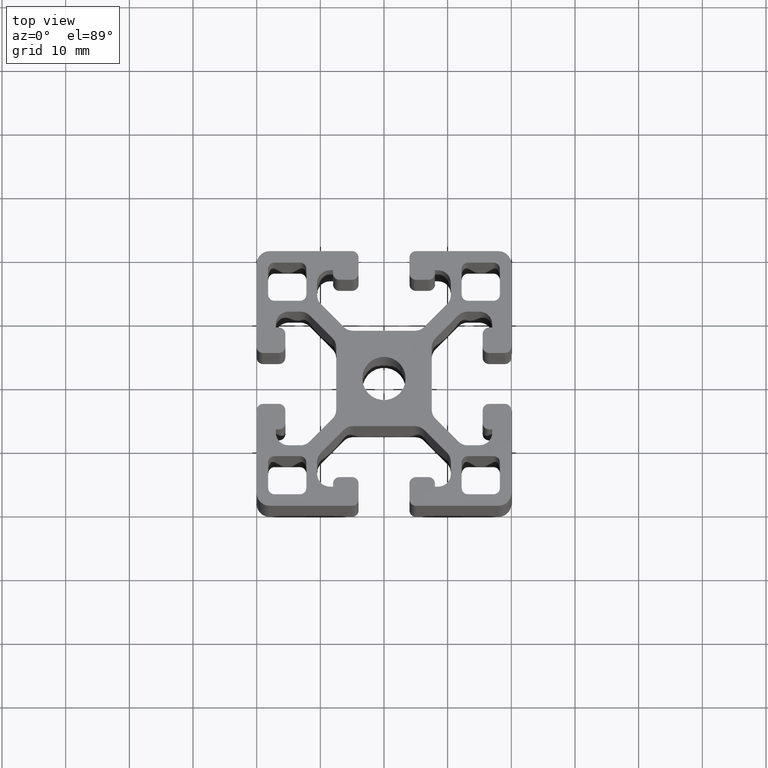
[diagram: clean part render]
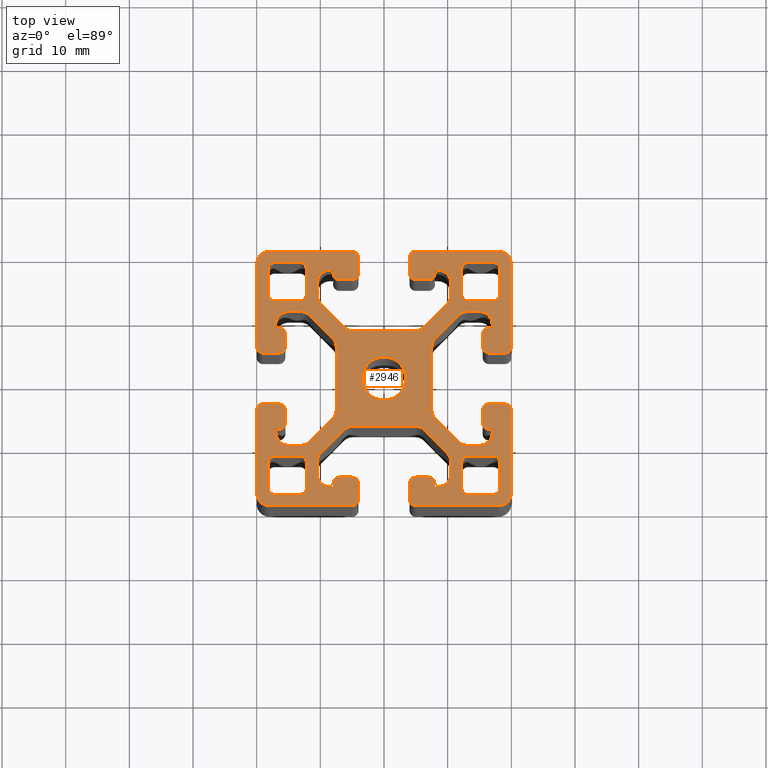
[diagram: same view with one face highlighted and labeled with its STEP entity id]
A machine part, top view. The second image highlights one B-rep face of the part: STEP entity #2946.
In plain terms, the highlighted planar face has unit normal (0, 0, 1).
Its self-contained STEP definition (entity closure, byte-faithful):
#21=FACE_BOUND('',#533,.T.);
#22=FACE_BOUND('',#534,.T.);
#23=FACE_BOUND('',#535,.T.);
#24=FACE_BOUND('',#536,.T.);
#25=FACE_BOUND('',#537,.T.);
#26=CIRCLE('',#2951,1.);
#28=CIRCLE('',#2955,1.);
#30=CIRCLE('',#2959,1.);
#32=CIRCLE('',#2963,1.);
#34=CIRCLE('',#2966,3.3999932);
#36=CIRCLE('',#2970,1.);
#38=CIRCLE('',#2974,1.);
#40=CIRCLE('',#2978,1.);
#42=CIRCLE('',#2982,1.);
#44=CIRCLE('',#2985,1.);
#46=CIRCLE('',#2989,1.);
#48=CIRCLE('',#2993,1.);
#50=CIRCLE('',#2997,1.);
#52=CIRCLE('',#3002,0.99999800405115);
#54=CIRCLE('',#3006,0.999998004051143);
#56=CIRCLE('',#3009,0.99999800405115);
#58=CIRCLE('',#3013,0.99999800405115);
#60=CIRCLE('',#3017,0.999998004051154);
#62=CIRCLE('',#3022,2.);
#64=CIRCLE('',#3026,2.);
#66=CIRCLE('',#3030,2.);
#68=CIRCLE('',#3034,1.99999999999999);
#70=CIRCLE('',#3038,2.00000000000001);
#72=CIRCLE('',#3042,2.00000000000001);
#74=CIRCLE('',#3047,0.99999800405115);
#76=CIRCLE('',#3051,0.99999800405115);
#78=CIRCLE('',#3056,2.);
#80=CIRCLE('',#3060,2.);
#82=CIRCLE('',#3064,2.);
#84=CIRCLE('',#3068,2.);
#86=CIRCLE('',#3072,2.);
#88=CIRCLE('',#3076,2.);
#90=CIRCLE('',#3081,0.99999800405115);
#92=CIRCLE('',#3085,0.99999800405115);
#94=CIRCLE('',#3089,0.99999800405115);
#96=CIRCLE('',#3092,0.99999800405115);
#98=CIRCLE('',#3096,0.99999800405115);
#100=CIRCLE('',#3101,0.999998004051149);
#102=CIRCLE('',#3105,0.999998004051154);
#104=CIRCLE('',#3109,0.99999800405115);
#106=CIRCLE('',#3112,0.99999800405115);
#108=CIRCLE('',#3116,0.99999800405115);
#110=CIRCLE('',#3120,0.99999800405115);
#112=CIRCLE('',#3125,2.);
#114=CIRCLE('',#3129,2.);
#116=CIRCLE('',#3133,2.);
#118=CIRCLE('',#3137,2.);
#120=CIRCLE('',#3141,2.);
#122=CIRCLE('',#3145,2.);
#124=CIRCLE('',#3148,0.99999800405115);
#126=CIRCLE('',#3153,2.);
#128=CIRCLE('',#3157,2.);
#130=CIRCLE('',#3161,2.);
#132=CIRCLE('',#3165,2.);
#134=CIRCLE('',#3169,2.);
#136=CIRCLE('',#3173,2.);
#138=CIRCLE('',#3178,0.999998004051148);
#140=CIRCLE('',#3182,0.99999800405115);
#142=CIRCLE('',#3186,0.999998004051161);
#144=CIRCLE('',#3189,0.99999800405115);
#146=CIRCLE('',#3193,0.99999800405115);
#148=CIRCLE('',#3198,1.);
#150=CIRCLE('',#3202,1.);
#152=CIRCLE('',#3206,1.);
#154=CIRCLE('',#3210,1.);
#160=CIRCLE('',#3222,1.99999999999999);
#161=CIRCLE('',#3225,2.);
#162=CIRCLE('',#3228,2.);
#163=CIRCLE('',#3231,2.);
#379=FACE_OUTER_BOUND('',#532,.T.);
#532=EDGE_LOOP('',(#2577,#2578,#2579,#2580,#2581,#2582,#2583,#2584,#2585,
#2586,#2587,#2588,#2589,#2590,#2591,#2592,#2593,#2594,#2595,#2596,#2597,
#2598,#2599,#2600,#2601,#2602,#2603,#2604,#2605,#2606,#2607,#2608,#2609,
#2610,#2611,#2612,#2613,#2614,#2615,#2616,#2617,#2618,#2619,#2620,#2621,
#2622,#2623,#2624,#2625,#2626,#2627,#2628,#2629,#2630,#2631,#2632,#2633,
#2634,#2635,#2636,#2637,#2638,#2639,#2640,#2641,#2642,#2643,#2644,#2645,
#2646,#2647,#2648,#2649,#2650,#2651,#2652,#2653,#2654,#2655,#2656,#2657,
#2658,#2659,#2660,#2661,#2662,#2663,#2664,#2665,#2666,#2667,#2668,#2669,
#2670,#2671,#2672,#2673,#2674,#2675,#2676,#2677,#2678,#2679,#2680,#2681,
#2682,#2683,#2684,#2685,#2686,#2687,#2688));
#533=EDGE_LOOP('',(#2689,#2690,#2691,#2692,#2693,#2694,#2695,#2696));
#534=EDGE_LOOP('',(#2697));
#535=EDGE_LOOP('',(#2698,#2699,#2700,#2701,#2702,#2703,#2704,#2705));
#536=EDGE_LOOP('',(#2706,#2707,#2708,#2709,#2710,#2711,#2712,#2713));
#537=EDGE_LOOP('',(#2714,#2715,#2716,#2717,#2718,#2719,#2720,#2721));
#538=LINE('',#4106,#834);
#543=LINE('',#4120,#839);
#547=LINE('',#4132,#843);
#551=LINE('',#4144,#847);
#554=LINE('',#4159,#850);
#559=LINE('',#4173,#855);
#563=LINE('',#4185,#859);
#567=LINE('',#4197,#863);
#572=LINE('',#4215,#868);
#576=LINE('',#4227,#872);
#580=LINE('',#4239,#876);
#584=LINE('',#4250,#880);
#586=LINE('',#4255,#882);
#591=LINE('',#4269,#887);
#597=LINE('',#4290,#893);
#601=LINE('',#4302,#897);
#605=LINE('',#4314,#901);
#608=LINE('',#4320,#904);
#612=LINE('',#4332,#908);
#616=LINE('',#4344,#912);
#620=LINE('',#4356,#916);
#624=LINE('',#4368,#920);
#628=LINE('',#4380,#924);
#632=LINE('',#4392,#928);
#635=LINE('',#4398,#931);
#638=LINE('',#4408,#934);
#643=LINE('',#4422,#939);
#646=LINE('',#4428,#942);
#650=LINE('',#4440,#946);
#654=LINE('',#4452,#950);
#658=LINE('',#4464,#954);
#662=LINE('',#4476,#958);
#666=LINE('',#4488,#962);
#670=LINE('',#4500,#966);
#673=LINE('',#4506,#969);
#677=LINE('',#4518,#973);
#681=LINE('',#4530,#977);
#687=LINE('',#4551,#983);
#690=LINE('',#4561,#986);
#694=LINE('',#4569,#990);
#698=LINE('',#4581,#994);
#702=LINE('',#4593,#998);
#708=LINE('',#4614,#1004);
#712=LINE('',#4626,#1008);
#716=LINE('',#4638,#1012);
#719=LINE('',#4644,#1015);
#723=LINE('',#4656,#1019);
#727=LINE('',#4668,#1023);
#731=LINE('',#4680,#1027);
#735=LINE('',#4692,#1031);
#739=LINE('',#4704,#1035);
#744=LINE('',#4722,#1040);
#747=LINE('',#4728,#1043);
#751=LINE('',#4740,#1047);
#755=LINE('',#4752,#1051);
#759=LINE('',#4764,#1055);
#763=LINE('',#4776,#1059);
#767=LINE('',#4788,#1063);
#771=LINE('',#4800,#1067);
#774=LINE('',#4806,#1070);
#778=LINE('',#4818,#1074);
#782=LINE('',#4830,#1078);
#788=LINE('',#4851,#1084);
#792=LINE('',#4862,#1088);
#794=LINE('',#4867,#1090);
#799=LINE('',#4881,#1095);
#803=LINE('',#4893,#1099);
#807=LINE('',#4905,#1103);
#810=LINE('',#4914,#1106);
#815=LINE('',#4923,#1111);
#816=LINE('',#4926,#1112);
#821=LINE('',#4935,#1117);
#828=LINE('',#4956,#1124);
#829=LINE('',#4961,#1125);
#832=LINE('',#4968,#1128);
#833=LINE('',#4972,#1129);
#834=VECTOR('',#3238,4.);
#839=VECTOR('',#3251,3.99999999999999);
#843=VECTOR('',#3263,3.99999999999999);
#847=VECTOR('',#3275,3.99999999999999);
#850=VECTOR('',#3292,3.99999999999999);
#855=VECTOR('',#3305,4.00000000000001);
#859=VECTOR('',#3317,4.);
#863=VECTOR('',#3329,4.);
#868=VECTOR('',#3348,4.);
#872=VECTOR('',#3360,4.);
#876=VECTOR('',#3372,4.);
#880=VECTOR('',#3384,4.);
#882=VECTOR('',#3388,2.0000039918977);
#887=VECTOR('',#3401,2.50000399189769);
#893=VECTOR('',#3421,2.50000399189769);
#897=VECTOR('',#3433,2.0000039918977);
#901=VECTOR('',#3445,0.500001995948844);
#904=VECTOR('',#3450,0.499999999999996);
#908=VECTOR('',#3462,1.90380592228745);
#912=VECTOR('',#3474,5.08578643762691);
#916=VECTOR('',#3486,9.80761184457489);
#920=VECTOR('',#3498,5.08578643762691);
#924=VECTOR('',#3510,1.90380592228743);
#928=VECTOR('',#3522,0.500000000000003);
#931=VECTOR('',#3527,0.500001995948844);
#934=VECTOR('',#3538,2.0000039918977);
#939=VECTOR('',#3551,0.500001995948853);
#942=VECTOR('',#3556,0.499999999999994);
#946=VECTOR('',#3568,1.90380592228744);
#950=VECTOR('',#3580,5.0857864376269);
#954=VECTOR('',#3592,9.80761184457489);
#958=VECTOR('',#3604,5.08578643762691);
#962=VECTOR('',#3616,1.90380592228743);
#966=VECTOR('',#3628,0.499999999999998);
#969=VECTOR('',#3633,0.500001995948853);
#973=VECTOR('',#3645,2.0000039918977);
#977=VECTOR('',#3657,2.50000399189769);
#983=VECTOR('',#3677,2.50000399189769);
#986=VECTOR('',#3688,0.499999999999998);
#990=VECTOR('',#3694,0.500001995948849);
#994=VECTOR('',#3706,2.0000039918977);
#998=VECTOR('',#3718,2.50000399189769);
#1004=VECTOR('',#3738,2.50000399189769);
#1008=VECTOR('',#3750,2.0000039918977);
#1012=VECTOR('',#3762,0.500001995948849);
#1015=VECTOR('',#3767,0.499999999999989);
#1019=VECTOR('',#3779,1.90380592228744);
#1023=VECTOR('',#3791,5.08578643762692);
#1027=VECTOR('',#3803,9.80761184457488);
#1031=VECTOR('',#3815,5.08578643762691);
#1035=VECTOR('',#3827,1.90380592228744);
#1040=VECTOR('',#3846,0.500001995948849);
#1043=VECTOR('',#3851,0.499999999999998);
#1047=VECTOR('',#3863,1.90380592228744);
#1051=VECTOR('',#3875,5.08578643762691);
#1055=VECTOR('',#3887,9.80761184457488);
#1059=VECTOR('',#3899,5.0857864376269);
#1063=VECTOR('',#3911,1.90380592228744);
#1067=VECTOR('',#3923,0.499999999999994);
#1070=VECTOR('',#3928,0.500001995948849);
#1074=VECTOR('',#3940,2.0000039918977);
#1078=VECTOR('',#3952,2.5000039918977);
#1084=VECTOR('',#3972,2.5000039918977);
#1088=VECTOR('',#3984,2.0000039918977);
#1090=VECTOR('',#3988,4.);
#1095=VECTOR('',#4001,3.99999999999999);
#1099=VECTOR('',#4013,3.99999999999999);
#1103=VECTOR('',#4025,3.99999999999999);
#1106=VECTOR('',#4036,13.0000019959489);
#1111=VECTOR('',#4043,13.0000019959489);
#1112=VECTOR('',#4046,13.0000019959488);
#1117=VECTOR('',#4053,13.0000019959488);
#1124=VECTOR('',#4076,13.0000019959488);
#1125=VECTOR('',#4083,13.0000019959488);
#1128=VECTOR('',#4092,13.0000019959489);
#1129=VECTOR('',#4099,13.0000019959489);
#1130=VERTEX_POINT('',#4104);
#1131=VERTEX_POINT('',#4105);
#1134=VERTEX_POINT('',#4113);
#1136=VERTEX_POINT('',#4119);
#1138=VERTEX_POINT('',#4125);
#1140=VERTEX_POINT('',#4131);
#1142=VERTEX_POINT('',#4137);
#1144=VERTEX_POINT('',#4143);
#1146=VERTEX_POINT('',#4152);
#1148=VERTEX_POINT('',#4157);
#1149=VERTEX_POINT('',#4158);
#1152=VERTEX_POINT('',#4166);
#1154=VERTEX_POINT('',#4172);
#1156=VERTEX_POINT('',#4178);
#1158=VERTEX_POINT('',#4184);
#1160=VERTEX_POINT('',#4190);
#1162=VERTEX_POINT('',#4196);
#1164=VERTEX_POINT('',#4205);
#1165=VERTEX_POINT('',#4206);
#1168=VERTEX_POINT('',#4214);
#1170=VERTEX_POINT('',#4220);
#1172=VERTEX_POINT('',#4226);
#1174=VERTEX_POINT('',#4232);
#1176=VERTEX_POINT('',#4238);
#1178=VERTEX_POINT('',#4244);
#1180=VERTEX_POINT('',#4253);
#1181=VERTEX_POINT('',#4254);
#1184=VERTEX_POINT('',#4262);
#1186=VERTEX_POINT('',#4268);
#1188=VERTEX_POINT('',#4274);
#1190=VERTEX_POINT('',#4280);
#1191=VERTEX_POINT('',#4281);
#1194=VERTEX_POINT('',#4289);
#1196=VERTEX_POINT('',#4295);
#1198=VERTEX_POINT('',#4301);
#1200=VERTEX_POINT('',#4307);
#1202=VERTEX_POINT('',#4313);
#1204=VERTEX_POINT('',#4319);
#1206=VERTEX_POINT('',#4325);
#1208=VERTEX_POINT('',#4331);
#1210=VERTEX_POINT('',#4337);
#1212=VERTEX_POINT('',#4343);
#1214=VERTEX_POINT('',#4349);
#1216=VERTEX_POINT('',#4355);
#1218=VERTEX_POINT('',#4361);
#1220=VERTEX_POINT('',#4367);
#1222=VERTEX_POINT('',#4373);
#1224=VERTEX_POINT('',#4379);
#1226=VERTEX_POINT('',#4385);
#1228=VERTEX_POINT('',#4391);
#1230=VERTEX_POINT('',#4397);
#1232=VERTEX_POINT('',#4406);
#1233=VERTEX_POINT('',#4407);
#1236=VERTEX_POINT('',#4415);
#1238=VERTEX_POINT('',#4421);
#1240=VERTEX_POINT('',#4427);
#1242=VERTEX_POINT('',#4433);
#1244=VERTEX_POINT('',#4439);
#1246=VERTEX_POINT('',#4445);
#1248=VERTEX_POINT('',#4451);
#1250=VERTEX_POINT('',#4457);
#1252=VERTEX_POINT('',#4463);
#1254=VERTEX_POINT('',#4469);
#1256=VERTEX_POINT('',#4475);
#1258=VERTEX_POINT('',#4481);
#1260=VERTEX_POINT('',#4487);
#1262=VERTEX_POINT('',#4493);
#1264=VERTEX_POINT('',#4499);
#1266=VERTEX_POINT('',#4505);
#1268=VERTEX_POINT('',#4511);
#1270=VERTEX_POINT('',#4517);
#1272=VERTEX_POINT('',#4523);
#1274=VERTEX_POINT('',#4529);
#1276=VERTEX_POINT('',#4535);
#1278=VERTEX_POINT('',#4541);
#1279=VERTEX_POINT('',#4542);
#1282=VERTEX_POINT('',#4550);
#1284=VERTEX_POINT('',#4559);
#1285=VERTEX_POINT('',#4560);
#1288=VERTEX_POINT('',#4568);
#1290=VERTEX_POINT('',#4574);
#1292=VERTEX_POINT('',#4580);
#1294=VERTEX_POINT('',#4586);
#1296=VERTEX_POINT('',#4592);
#1298=VERTEX_POINT('',#4598);
#1300=VERTEX_POINT('',#4604);
#1301=VERTEX_POINT('',#4605);
#1304=VERTEX_POINT('',#4613);
#1306=VERTEX_POINT('',#4619);
#1308=VERTEX_POINT('',#4625);
#1310=VERTEX_POINT('',#4631);
#1312=VERTEX_POINT('',#4637);
#1314=VERTEX_POINT('',#4643);
#1316=VERTEX_POINT('',#4649);
#1318=VERTEX_POINT('',#4655);
#1320=VERTEX_POINT('',#4661);
#1322=VERTEX_POINT('',#4667);
#1324=VERTEX_POINT('',#4673);
#1326=VERTEX_POINT('',#4679);
#1328=VERTEX_POINT('',#4685);
#1330=VERTEX_POINT('',#4691);
#1332=VERTEX_POINT('',#4697);
#1334=VERTEX_POINT('',#4703);
#1336=VERTEX_POINT('',#4712);
#1337=VERTEX_POINT('',#4713);
#1340=VERTEX_POINT('',#4721);
#1342=VERTEX_POINT('',#4727);
#1344=VERTEX_POINT('',#4733);
#1346=VERTEX_POINT('',#4739);
#1348=VERTEX_POINT('',#4745);
#1350=VERTEX_POINT('',#4751);
#1352=VERTEX_POINT('',#4757);
#1354=VERTEX_POINT('',#4763);
#1356=VERTEX_POINT('',#4769);
#1358=VERTEX_POINT('',#4775);
#1360=VERTEX_POINT('',#4781);
#1362=VERTEX_POINT('',#4787);
#1364=VERTEX_POINT('',#4793);
#1366=VERTEX_POINT('',#4799);
#1368=VERTEX_POINT('',#4805);
#1370=VERTEX_POINT('',#4811);
#1372=VERTEX_POINT('',#4817);
#1374=VERTEX_POINT('',#4823);
#1376=VERTEX_POINT('',#4829);
#1378=VERTEX_POINT('',#4835);
#1380=VERTEX_POINT('',#4841);
#1381=VERTEX_POINT('',#4842);
#1384=VERTEX_POINT('',#4850);
#1386=VERTEX_POINT('',#4856);
#1388=VERTEX_POINT('',#4865);
#1389=VERTEX_POINT('',#4866);
#1392=VERTEX_POINT('',#4874);
#1394=VERTEX_POINT('',#4880);
#1396=VERTEX_POINT('',#4886);
#1398=VERTEX_POINT('',#4892);
#1400=VERTEX_POINT('',#4898);
#1402=VERTEX_POINT('',#4904);
#1404=VERTEX_POINT('',#4913);
#1407=VERTEX_POINT('',#4921);
#1408=VERTEX_POINT('',#4925);
#1411=VERTEX_POINT('',#4933);
#1416=VERTEX_POINT('',#4950);
#1417=VERTEX_POINT('',#4951);
#1418=VERTEX_POINT('',#4960);
#1419=VERTEX_POINT('',#4964);
#1420=EDGE_CURVE('',#1130,#1131,#538,.T.);
#1424=EDGE_CURVE('',#1131,#1134,#26,.T.);
#1427=EDGE_CURVE('',#1134,#1136,#543,.T.);
#1430=EDGE_CURVE('',#1136,#1138,#28,.T.);
#1433=EDGE_CURVE('',#1138,#1140,#547,.T.);
#1436=EDGE_CURVE('',#1140,#1142,#30,.T.);
#1439=EDGE_CURVE('',#1142,#1144,#551,.T.);
#1442=EDGE_CURVE('',#1144,#1130,#32,.T.);
#1444=EDGE_CURVE('',#1146,#1146,#34,.T.);
#1446=EDGE_CURVE('',#1148,#1149,#554,.T.);
#1450=EDGE_CURVE('',#1152,#1148,#36,.T.);
#1453=EDGE_CURVE('',#1154,#1152,#559,.T.);
#1456=EDGE_CURVE('',#1156,#1154,#38,.T.);
#1459=EDGE_CURVE('',#1158,#1156,#563,.T.);
#1462=EDGE_CURVE('',#1160,#1158,#40,.T.);
#1465=EDGE_CURVE('',#1162,#1160,#567,.T.);
#1468=EDGE_CURVE('',#1149,#1162,#42,.T.);
#1470=EDGE_CURVE('',#1164,#1165,#44,.T.);
#1474=EDGE_CURVE('',#1165,#1168,#572,.T.);
#1477=EDGE_CURVE('',#1168,#1170,#46,.T.);
#1480=EDGE_CURVE('',#1170,#1172,#576,.T.);
#1483=EDGE_CURVE('',#1172,#1174,#48,.T.);
#1486=EDGE_CURVE('',#1174,#1176,#580,.T.);
#1489=EDGE_CURVE('',#1176,#1178,#50,.T.);
#1492=EDGE_CURVE('',#1178,#1164,#584,.T.);
#1494=EDGE_CURVE('',#1180,#1181,#586,.T.);
#1498=EDGE_CURVE('',#1184,#1180,#52,.T.);
#1501=EDGE_CURVE('',#1186,#1184,#591,.T.);
#1504=EDGE_CURVE('',#1188,#1186,#54,.T.);
#1507=EDGE_CURVE('',#1190,#1191,#56,.T.);
#1511=EDGE_CURVE('',#1194,#1190,#597,.T.);
#1514=EDGE_CURVE('',#1196,#1194,#58,.T.);
#1517=EDGE_CURVE('',#1198,#1196,#601,.T.);
#1520=EDGE_CURVE('',#1200,#1198,#60,.T.);
#1523=EDGE_CURVE('',#1202,#1200,#605,.T.);
#1526=EDGE_CURVE('',#1204,#1202,#608,.T.);
#1529=EDGE_CURVE('',#1206,#1204,#62,.T.);
#1532=EDGE_CURVE('',#1208,#1206,#612,.T.);
#1535=EDGE_CURVE('',#1210,#1208,#64,.T.);
#1538=EDGE_CURVE('',#1212,#1210,#616,.T.);
#1541=EDGE_CURVE('',#1214,#1212,#66,.T.);
#1544=EDGE_CURVE('',#1216,#1214,#620,.T.);
#1547=EDGE_CURVE('',#1218,#1216,#68,.T.);
#1550=EDGE_CURVE('',#1220,#1218,#624,.T.);
#1553=EDGE_CURVE('',#1222,#1220,#70,.T.);
#1556=EDGE_CURVE('',#1224,#1222,#628,.T.);
#1559=EDGE_CURVE('',#1226,#1224,#72,.T.);
#1562=EDGE_CURVE('',#1228,#1226,#632,.T.);
#1565=EDGE_CURVE('',#1230,#1228,#635,.T.);
#1568=EDGE_CURVE('',#1181,#1230,#74,.T.);
#1570=EDGE_CURVE('',#1232,#1233,#638,.T.);
#1574=EDGE_CURVE('',#1233,#1236,#76,.T.);
#1577=EDGE_CURVE('',#1236,#1238,#643,.T.);
#1580=EDGE_CURVE('',#1238,#1240,#646,.T.);
#1583=EDGE_CURVE('',#1240,#1242,#78,.T.);
#1586=EDGE_CURVE('',#1242,#1244,#650,.T.);
#1589=EDGE_CURVE('',#1244,#1246,#80,.T.);
#1592=EDGE_CURVE('',#1246,#1248,#654,.T.);
#1595=EDGE_CURVE('',#1248,#1250,#82,.T.);
#1598=EDGE_CURVE('',#1250,#1252,#658,.T.);
#1601=EDGE_CURVE('',#1252,#1254,#84,.T.);
#1604=EDGE_CURVE('',#1254,#1256,#662,.T.);
#1607=EDGE_CURVE('',#1256,#1258,#86,.T.);
#1610=EDGE_CURVE('',#1258,#1260,#666,.T.);
#1613=EDGE_CURVE('',#1260,#1262,#88,.T.);
#1616=EDGE_CURVE('',#1262,#1264,#670,.T.);
#1619=EDGE_CURVE('',#1264,#1266,#673,.T.);
#1622=EDGE_CURVE('',#1266,#1268,#90,.T.);
#1625=EDGE_CURVE('',#1268,#1270,#677,.T.);
#1628=EDGE_CURVE('',#1270,#1272,#92,.T.);
#1631=EDGE_CURVE('',#1272,#1274,#681,.T.);
#1634=EDGE_CURVE('',#1274,#1276,#94,.T.);
#1637=EDGE_CURVE('',#1278,#1279,#96,.T.);
#1641=EDGE_CURVE('',#1279,#1282,#687,.T.);
#1644=EDGE_CURVE('',#1282,#1232,#98,.T.);
#1646=EDGE_CURVE('',#1284,#1285,#690,.T.);
#1650=EDGE_CURVE('',#1288,#1284,#694,.T.);
#1653=EDGE_CURVE('',#1290,#1288,#100,.T.);
#1656=EDGE_CURVE('',#1292,#1290,#698,.T.);
#1659=EDGE_CURVE('',#1294,#1292,#102,.T.);
#1662=EDGE_CURVE('',#1296,#1294,#702,.T.);
#1665=EDGE_CURVE('',#1298,#1296,#104,.T.);
#1668=EDGE_CURVE('',#1300,#1301,#106,.T.);
#1672=EDGE_CURVE('',#1304,#1300,#708,.T.);
#1675=EDGE_CURVE('',#1306,#1304,#108,.T.);
#1678=EDGE_CURVE('',#1308,#1306,#712,.T.);
#1681=EDGE_CURVE('',#1310,#1308,#110,.T.);
#1684=EDGE_CURVE('',#1312,#1310,#716,.T.);
#1687=EDGE_CURVE('',#1314,#1312,#719,.T.);
#1690=EDGE_CURVE('',#1316,#1314,#112,.T.);
#1693=EDGE_CURVE('',#1318,#1316,#723,.T.);
#1696=EDGE_CURVE('',#1320,#1318,#114,.T.);
#1699=EDGE_CURVE('',#1322,#1320,#727,.T.);
#1702=EDGE_CURVE('',#1324,#1322,#116,.T.);
#1705=EDGE_CURVE('',#1326,#1324,#731,.T.);
#1708=EDGE_CURVE('',#1328,#1326,#118,.T.);
#1711=EDGE_CURVE('',#1330,#1328,#735,.T.);
#1714=EDGE_CURVE('',#1332,#1330,#120,.T.);
#1717=EDGE_CURVE('',#1334,#1332,#739,.T.);
#1720=EDGE_CURVE('',#1285,#1334,#122,.T.);
#1722=EDGE_CURVE('',#1336,#1337,#124,.T.);
#1726=EDGE_CURVE('',#1337,#1340,#744,.T.);
#1729=EDGE_CURVE('',#1340,#1342,#747,.T.);
#1732=EDGE_CURVE('',#1342,#1344,#126,.T.);
#1735=EDGE_CURVE('',#1344,#1346,#751,.T.);
#1738=EDGE_CURVE('',#1346,#1348,#128,.T.);
#1741=EDGE_CURVE('',#1348,#1350,#755,.T.);
#1744=EDGE_CURVE('',#1350,#1352,#130,.T.);
#1747=EDGE_CURVE('',#1352,#1354,#759,.T.);
#1750=EDGE_CURVE('',#1354,#1356,#132,.T.);
#1753=EDGE_CURVE('',#1356,#1358,#763,.T.);
#1756=EDGE_CURVE('',#1358,#1360,#134,.T.);
#1759=EDGE_CURVE('',#1360,#1362,#767,.T.);
#1762=EDGE_CURVE('',#1362,#1364,#136,.T.);
#1765=EDGE_CURVE('',#1364,#1366,#771,.T.);
#1768=EDGE_CURVE('',#1366,#1368,#774,.T.);
#1771=EDGE_CURVE('',#1368,#1370,#138,.T.);
#1774=EDGE_CURVE('',#1370,#1372,#778,.T.);
#1777=EDGE_CURVE('',#1372,#1374,#140,.T.);
#1780=EDGE_CURVE('',#1374,#1376,#782,.T.);
#1783=EDGE_CURVE('',#1376,#1378,#142,.T.);
#1786=EDGE_CURVE('',#1380,#1381,#144,.T.);
#1790=EDGE_CURVE('',#1381,#1384,#788,.T.);
#1793=EDGE_CURVE('',#1384,#1386,#146,.T.);
#1796=EDGE_CURVE('',#1386,#1336,#792,.T.);
#1798=EDGE_CURVE('',#1388,#1389,#794,.T.);
#1802=EDGE_CURVE('',#1392,#1388,#148,.T.);
#1805=EDGE_CURVE('',#1394,#1392,#799,.T.);
#1808=EDGE_CURVE('',#1396,#1394,#150,.T.);
#1811=EDGE_CURVE('',#1398,#1396,#803,.T.);
#1814=EDGE_CURVE('',#1400,#1398,#152,.T.);
#1817=EDGE_CURVE('',#1402,#1400,#807,.T.);
#1820=EDGE_CURVE('',#1389,#1402,#154,.T.);
#1822=EDGE_CURVE('',#1188,#1404,#810,.T.);
#1827=EDGE_CURVE('',#1407,#1276,#815,.T.);
#1828=EDGE_CURVE('',#1298,#1408,#816,.T.);
#1833=EDGE_CURVE('',#1411,#1378,#821,.T.);
#1842=EDGE_CURVE('',#1416,#1417,#160,.T.);
#1845=EDGE_CURVE('',#1417,#1191,#828,.T.);
#1846=EDGE_CURVE('',#1404,#1407,#161,.T.);
#1847=EDGE_CURVE('',#1278,#1418,#829,.T.);
#1849=EDGE_CURVE('',#1418,#1419,#162,.T.);
#1851=EDGE_CURVE('',#1419,#1301,#832,.T.);
#1852=EDGE_CURVE('',#1408,#1411,#163,.T.);
#1853=EDGE_CURVE('',#1380,#1416,#833,.T.);
#2577=ORIENTED_EDGE('',*,*,#1507,.T.);
#2578=ORIENTED_EDGE('',*,*,#1845,.F.);
#2579=ORIENTED_EDGE('',*,*,#1842,.F.);
#2580=ORIENTED_EDGE('',*,*,#1853,.F.);
#2581=ORIENTED_EDGE('',*,*,#1786,.T.);
#2582=ORIENTED_EDGE('',*,*,#1790,.T.);
#2583=ORIENTED_EDGE('',*,*,#1793,.T.);
#2584=ORIENTED_EDGE('',*,*,#1796,.T.);
#2585=ORIENTED_EDGE('',*,*,#1722,.T.);
#2586=ORIENTED_EDGE('',*,*,#1726,.T.);
#2587=ORIENTED_EDGE('',*,*,#1729,.T.);
#2588=ORIENTED_EDGE('',*,*,#1732,.T.);
#2589=ORIENTED_EDGE('',*,*,#1735,.T.);
#2590=ORIENTED_EDGE('',*,*,#1738,.T.);
#2591=ORIENTED_EDGE('',*,*,#1741,.T.);
#2592=ORIENTED_EDGE('',*,*,#1744,.T.);
#2593=ORIENTED_EDGE('',*,*,#1747,.T.);
#2594=ORIENTED_EDGE('',*,*,#1750,.T.);
#2595=ORIENTED_EDGE('',*,*,#1753,.T.);
#2596=ORIENTED_EDGE('',*,*,#1756,.T.);
#2597=ORIENTED_EDGE('',*,*,#1759,.T.);
#2598=ORIENTED_EDGE('',*,*,#1762,.T.);
#2599=ORIENTED_EDGE('',*,*,#1765,.T.);
#2600=ORIENTED_EDGE('',*,*,#1768,.T.);
#2601=ORIENTED_EDGE('',*,*,#1771,.T.);
#2602=ORIENTED_EDGE('',*,*,#1774,.T.);
#2603=ORIENTED_EDGE('',*,*,#1777,.T.);
#2604=ORIENTED_EDGE('',*,*,#1780,.T.);
#2605=ORIENTED_EDGE('',*,*,#1783,.T.);
#2606=ORIENTED_EDGE('',*,*,#1833,.F.);
#2607=ORIENTED_EDGE('',*,*,#1852,.F.);
#2608=ORIENTED_EDGE('',*,*,#1828,.F.);
#2609=ORIENTED_EDGE('',*,*,#1665,.T.);
#2610=ORIENTED_EDGE('',*,*,#1662,.T.);
#2611=ORIENTED_EDGE('',*,*,#1659,.T.);
#2612=ORIENTED_EDGE('',*,*,#1656,.T.);
#2613=ORIENTED_EDGE('',*,*,#1653,.T.);
#2614=ORIENTED_EDGE('',*,*,#1650,.T.);
#2615=ORIENTED_EDGE('',*,*,#1646,.T.);
#2616=ORIENTED_EDGE('',*,*,#1720,.T.);
#2617=ORIENTED_EDGE('',*,*,#1717,.T.);
#2618=ORIENTED_EDGE('',*,*,#1714,.T.);
#2619=ORIENTED_EDGE('',*,*,#1711,.T.);
#2620=ORIENTED_EDGE('',*,*,#1708,.T.);
#2621=ORIENTED_EDGE('',*,*,#1705,.T.);
#2622=ORIENTED_EDGE('',*,*,#1702,.T.);
#2623=ORIENTED_EDGE('',*,*,#1699,.T.);
#2624=ORIENTED_EDGE('',*,*,#1696,.T.);
#2625=ORIENTED_EDGE('',*,*,#1693,.T.);
#2626=ORIENTED_EDGE('',*,*,#1690,.T.);
#2627=ORIENTED_EDGE('',*,*,#1687,.T.);
#2628=ORIENTED_EDGE('',*,*,#1684,.T.);
#2629=ORIENTED_EDGE('',*,*,#1681,.T.);
#2630=ORIENTED_EDGE('',*,*,#1678,.T.);
#2631=ORIENTED_EDGE('',*,*,#1675,.T.);
#2632=ORIENTED_EDGE('',*,*,#1672,.T.);
#2633=ORIENTED_EDGE('',*,*,#1668,.T.);
#2634=ORIENTED_EDGE('',*,*,#1851,.F.);
#2635=ORIENTED_EDGE('',*,*,#1849,.F.);
#2636=ORIENTED_EDGE('',*,*,#1847,.F.);
#2637=ORIENTED_EDGE('',*,*,#1637,.T.);
#2638=ORIENTED_EDGE('',*,*,#1641,.T.);
#2639=ORIENTED_EDGE('',*,*,#1644,.T.);
#2640=ORIENTED_EDGE('',*,*,#1570,.T.);
#2641=ORIENTED_EDGE('',*,*,#1574,.T.);
#2642=ORIENTED_EDGE('',*,*,#1577,.T.);
#2643=ORIENTED_EDGE('',*,*,#1580,.T.);
#2644=ORIENTED_EDGE('',*,*,#1583,.T.);
#2645=ORIENTED_EDGE('',*,*,#1586,.T.);
#2646=ORIENTED_EDGE('',*,*,#1589,.T.);
#2647=ORIENTED_EDGE('',*,*,#1592,.T.);
#2648=ORIENTED_EDGE('',*,*,#1595,.T.);
#2649=ORIENTED_EDGE('',*,*,#1598,.T.);
#2650=ORIENTED_EDGE('',*,*,#1601,.T.);
#2651=ORIENTED_EDGE('',*,*,#1604,.T.);
#2652=ORIENTED_EDGE('',*,*,#1607,.T.);
#2653=ORIENTED_EDGE('',*,*,#1610,.T.);
#2654=ORIENTED_EDGE('',*,*,#1613,.T.);
#2655=ORIENTED_EDGE('',*,*,#1616,.T.);
#2656=ORIENTED_EDGE('',*,*,#1619,.T.);
#2657=ORIENTED_EDGE('',*,*,#1622,.T.);
#2658=ORIENTED_EDGE('',*,*,#1625,.T.);
#2659=ORIENTED_EDGE('',*,*,#1628,.T.);
#2660=ORIENTED_EDGE('',*,*,#1631,.T.);
#2661=ORIENTED_EDGE('',*,*,#1634,.T.);
#2662=ORIENTED_EDGE('',*,*,#1827,.F.);
#2663=ORIENTED_EDGE('',*,*,#1846,.F.);
#2664=ORIENTED_EDGE('',*,*,#1822,.F.);
#2665=ORIENTED_EDGE('',*,*,#1504,.T.);
#2666=ORIENTED_EDGE('',*,*,#1501,.T.);
#2667=ORIENTED_EDGE('',*,*,#1498,.T.);
#2668=ORIENTED_EDGE('',*,*,#1494,.T.);
#2669=ORIENTED_EDGE('',*,*,#1568,.T.);
#2670=ORIENTED_EDGE('',*,*,#1565,.T.);
#2671=ORIENTED_EDGE('',*,*,#1562,.T.);
#2672=ORIENTED_EDGE('',*,*,#1559,.T.);
#2673=ORIENTED_EDGE('',*,*,#1556,.T.);
#2674=ORIENTED_EDGE('',*,*,#1553,.T.);
#2675=ORIENTED_EDGE('',*,*,#1550,.T.);
#2676=ORIENTED_EDGE('',*,*,#1547,.T.);
#2677=ORIENTED_EDGE('',*,*,#1544,.T.);
#2678=ORIENTED_EDGE('',*,*,#1541,.T.);
#2679=ORIENTED_EDGE('',*,*,#1538,.T.);
#2680=ORIENTED_EDGE('',*,*,#1535,.T.);
#2681=ORIENTED_EDGE('',*,*,#1532,.T.);
#2682=ORIENTED_EDGE('',*,*,#1529,.T.);
#2683=ORIENTED_EDGE('',*,*,#1526,.T.);
#2684=ORIENTED_EDGE('',*,*,#1523,.T.);
#2685=ORIENTED_EDGE('',*,*,#1520,.T.);
#2686=ORIENTED_EDGE('',*,*,#1517,.T.);
#2687=ORIENTED_EDGE('',*,*,#1514,.T.);
#2688=ORIENTED_EDGE('',*,*,#1511,.T.);
#2689=ORIENTED_EDGE('',*,*,#1420,.T.);
#2690=ORIENTED_EDGE('',*,*,#1424,.T.);
#2691=ORIENTED_EDGE('',*,*,#1427,.T.);
#2692=ORIENTED_EDGE('',*,*,#1430,.T.);
#2693=ORIENTED_EDGE('',*,*,#1433,.T.);
#2694=ORIENTED_EDGE('',*,*,#1436,.T.);
#2695=ORIENTED_EDGE('',*,*,#1439,.T.);
#2696=ORIENTED_EDGE('',*,*,#1442,.T.);
#2697=ORIENTED_EDGE('',*,*,#1444,.T.);
#2698=ORIENTED_EDGE('',*,*,#1446,.T.);
#2699=ORIENTED_EDGE('',*,*,#1468,.T.);
#2700=ORIENTED_EDGE('',*,*,#1465,.T.);
#2701=ORIENTED_EDGE('',*,*,#1462,.T.);
#2702=ORIENTED_EDGE('',*,*,#1459,.T.);
#2703=ORIENTED_EDGE('',*,*,#1456,.T.);
#2704=ORIENTED_EDGE('',*,*,#1453,.T.);
#2705=ORIENTED_EDGE('',*,*,#1450,.T.);
#2706=ORIENTED_EDGE('',*,*,#1470,.T.);
#2707=ORIENTED_EDGE('',*,*,#1474,.T.);
#2708=ORIENTED_EDGE('',*,*,#1477,.T.);
#2709=ORIENTED_EDGE('',*,*,#1480,.T.);
#2710=ORIENTED_EDGE('',*,*,#1483,.T.);
#2711=ORIENTED_EDGE('',*,*,#1486,.T.);
#2712=ORIENTED_EDGE('',*,*,#1489,.T.);
#2713=ORIENTED_EDGE('',*,*,#1492,.T.);
#2714=ORIENTED_EDGE('',*,*,#1798,.T.);
#2715=ORIENTED_EDGE('',*,*,#1820,.T.);
#2716=ORIENTED_EDGE('',*,*,#1817,.T.);
#2717=ORIENTED_EDGE('',*,*,#1814,.T.);
#2718=ORIENTED_EDGE('',*,*,#1811,.T.);
#2719=ORIENTED_EDGE('',*,*,#1808,.T.);
#2720=ORIENTED_EDGE('',*,*,#1805,.T.);
#2721=ORIENTED_EDGE('',*,*,#1802,.T.);
#2799=PLANE('',#3233);
#2946=ADVANCED_FACE('',(#379,#21,#22,#23,#24,#25),#2799,.T.);
#2951=AXIS2_PLACEMENT_3D('',#4114,#3244,#3245);
#2955=AXIS2_PLACEMENT_3D('',#4126,#3256,#3257);
#2959=AXIS2_PLACEMENT_3D('',#4138,#3268,#3269);
#2963=AXIS2_PLACEMENT_3D('',#4149,#3280,#3281);
#2966=AXIS2_PLACEMENT_3D('',#4153,#3286,#3287);
#2970=AXIS2_PLACEMENT_3D('',#4167,#3298,#3299);
#2974=AXIS2_PLACEMENT_3D('',#4179,#3310,#3311);
#2978=AXIS2_PLACEMENT_3D('',#4191,#3322,#3323);
#2982=AXIS2_PLACEMENT_3D('',#4202,#3334,#3335);
#2985=AXIS2_PLACEMENT_3D('',#4207,#3340,#3341);
#2989=AXIS2_PLACEMENT_3D('',#4221,#3353,#3354);
#2993=AXIS2_PLACEMENT_3D('',#4233,#3365,#3366);
#2997=AXIS2_PLACEMENT_3D('',#4245,#3377,#3378);
#3002=AXIS2_PLACEMENT_3D('',#4263,#3394,#3395);
#3006=AXIS2_PLACEMENT_3D('',#4275,#3406,#3407);
#3009=AXIS2_PLACEMENT_3D('',#4282,#3413,#3414);
#3013=AXIS2_PLACEMENT_3D('',#4296,#3426,#3427);
#3017=AXIS2_PLACEMENT_3D('',#4308,#3438,#3439);
#3022=AXIS2_PLACEMENT_3D('',#4326,#3455,#3456);
#3026=AXIS2_PLACEMENT_3D('',#4338,#3467,#3468);
#3030=AXIS2_PLACEMENT_3D('',#4350,#3479,#3480);
#3034=AXIS2_PLACEMENT_3D('',#4362,#3491,#3492);
#3038=AXIS2_PLACEMENT_3D('',#4374,#3503,#3504);
#3042=AXIS2_PLACEMENT_3D('',#4386,#3515,#3516);
#3047=AXIS2_PLACEMENT_3D('',#4403,#3532,#3533);
#3051=AXIS2_PLACEMENT_3D('',#4416,#3544,#3545);
#3056=AXIS2_PLACEMENT_3D('',#4434,#3561,#3562);
#3060=AXIS2_PLACEMENT_3D('',#4446,#3573,#3574);
#3064=AXIS2_PLACEMENT_3D('',#4458,#3585,#3586);
#3068=AXIS2_PLACEMENT_3D('',#4470,#3597,#3598);
#3072=AXIS2_PLACEMENT_3D('',#4482,#3609,#3610);
#3076=AXIS2_PLACEMENT_3D('',#4494,#3621,#3622);
#3081=AXIS2_PLACEMENT_3D('',#4512,#3638,#3639);
#3085=AXIS2_PLACEMENT_3D('',#4524,#3650,#3651);
#3089=AXIS2_PLACEMENT_3D('',#4536,#3662,#3663);
#3092=AXIS2_PLACEMENT_3D('',#4543,#3669,#3670);
#3096=AXIS2_PLACEMENT_3D('',#4556,#3682,#3683);
#3101=AXIS2_PLACEMENT_3D('',#4575,#3699,#3700);
#3105=AXIS2_PLACEMENT_3D('',#4587,#3711,#3712);
#3109=AXIS2_PLACEMENT_3D('',#4599,#3723,#3724);
#3112=AXIS2_PLACEMENT_3D('',#4606,#3730,#3731);
#3116=AXIS2_PLACEMENT_3D('',#4620,#3743,#3744);
#3120=AXIS2_PLACEMENT_3D('',#4632,#3755,#3756);
#3125=AXIS2_PLACEMENT_3D('',#4650,#3772,#3773);
#3129=AXIS2_PLACEMENT_3D('',#4662,#3784,#3785);
#3133=AXIS2_PLACEMENT_3D('',#4674,#3796,#3797);
#3137=AXIS2_PLACEMENT_3D('',#4686,#3808,#3809);
#3141=AXIS2_PLACEMENT_3D('',#4698,#3820,#3821);
#3145=AXIS2_PLACEMENT_3D('',#4709,#3832,#3833);
#3148=AXIS2_PLACEMENT_3D('',#4714,#3838,#3839);
#3153=AXIS2_PLACEMENT_3D('',#4734,#3856,#3857);
#3157=AXIS2_PLACEMENT_3D('',#4746,#3868,#3869);
#3161=AXIS2_PLACEMENT_3D('',#4758,#3880,#3881);
#3165=AXIS2_PLACEMENT_3D('',#4770,#3892,#3893);
#3169=AXIS2_PLACEMENT_3D('',#4782,#3904,#3905);
#3173=AXIS2_PLACEMENT_3D('',#4794,#3916,#3917);
#3178=AXIS2_PLACEMENT_3D('',#4812,#3933,#3934);
#3182=AXIS2_PLACEMENT_3D('',#4824,#3945,#3946);
#3186=AXIS2_PLACEMENT_3D('',#4836,#3957,#3958);
#3189=AXIS2_PLACEMENT_3D('',#4843,#3964,#3965);
#3193=AXIS2_PLACEMENT_3D('',#4857,#3977,#3978);
#3198=AXIS2_PLACEMENT_3D('',#4875,#3994,#3995);
#3202=AXIS2_PLACEMENT_3D('',#4887,#4006,#4007);
#3206=AXIS2_PLACEMENT_3D('',#4899,#4018,#4019);
#3210=AXIS2_PLACEMENT_3D('',#4910,#4030,#4031);
#3222=AXIS2_PLACEMENT_3D('',#4952,#4070,#4071);
#3225=AXIS2_PLACEMENT_3D('',#4958,#4079,#4080);
#3228=AXIS2_PLACEMENT_3D('',#4965,#4087,#4088);
#3231=AXIS2_PLACEMENT_3D('',#4970,#4095,#4096);
#3233=AXIS2_PLACEMENT_3D('',#4973,#4100,#4101);
#3238=DIRECTION('',(1.,1.11022302462516E-15,0.));
#3244=DIRECTION('center_axis',(0.,0.,-1.));
#3245=DIRECTION('ref_axis',(-1.,0.,0.));
#3251=DIRECTION('',(0.,-1.,0.));
#3256=DIRECTION('center_axis',(0.,0.,-1.));
#3257=DIRECTION('ref_axis',(0.,1.,0.));
#3263=DIRECTION('',(-1.,0.,0.));
#3268=DIRECTION('center_axis',(0.,0.,-1.));
#3269=DIRECTION('ref_axis',(1.,0.,0.));
#3275=DIRECTION('',(0.,1.,0.));
#3280=DIRECTION('center_axis',(0.,0.,-1.));
#3281=DIRECTION('ref_axis',(4.44089209850062E-15,-1.,0.));
#3286=DIRECTION('center_axis',(0.,0.,-1.));
#3287=DIRECTION('ref_axis',(-1.,0.,0.));
#3292=DIRECTION('',(-1.,1.66533453693774E-15,0.));
#3298=DIRECTION('center_axis',(0.,0.,-1.));
#3299=DIRECTION('ref_axis',(0.,-1.,0.));
#3305=DIRECTION('',(0.,-1.,0.));
#3310=DIRECTION('center_axis',(0.,0.,-1.));
#3311=DIRECTION('ref_axis',(1.,0.,0.));
#3317=DIRECTION('',(1.,5.55111512312579E-16,0.));
#3322=DIRECTION('center_axis',(0.,0.,-1.));
#3323=DIRECTION('ref_axis',(0.,1.,0.));
#3329=DIRECTION('',(0.,1.,0.));
#3334=DIRECTION('center_axis',(0.,0.,-1.));
#3335=DIRECTION('ref_axis',(-1.,0.,0.));
#3340=DIRECTION('center_axis',(0.,0.,-1.));
#3341=DIRECTION('ref_axis',(0.,1.,0.));
#3348=DIRECTION('',(-1.,-5.55111512312579E-16,0.));
#3353=DIRECTION('center_axis',(0.,0.,-1.));
#3354=DIRECTION('ref_axis',(1.,0.,0.));
#3360=DIRECTION('',(5.55111512312578E-16,1.,0.));
#3365=DIRECTION('center_axis',(0.,0.,-1.));
#3366=DIRECTION('ref_axis',(4.44089209850062E-15,-1.,0.));
#3372=DIRECTION('',(1.,-5.55111512312578E-16,0.));
#3377=DIRECTION('center_axis',(0.,0.,-1.));
#3378=DIRECTION('ref_axis',(-1.,0.,0.));
#3384=DIRECTION('',(-1.11022302462516E-15,-1.,0.));
#3388=DIRECTION('',(0.,1.,0.));
#3394=DIRECTION('center_axis',(0.,0.,1.));
#3395=DIRECTION('ref_axis',(-4.44090096231179E-15,1.,0.));
#3401=DIRECTION('',(1.,-1.77635400299087E-15,0.));
#3406=DIRECTION('center_axis',(0.,0.,1.));
#3407=DIRECTION('ref_axis',(1.,8.88180192462355E-15,0.));
#3413=DIRECTION('center_axis',(0.,0.,1.));
#3414=DIRECTION('ref_axis',(0.,-1.,0.));
#3421=DIRECTION('',(-1.,0.,0.));
#3426=DIRECTION('center_axis',(0.,0.,1.));
#3427=DIRECTION('ref_axis',(-1.,-2.2204504811559E-15,0.));
#3433=DIRECTION('',(0.,1.,0.));
#3438=DIRECTION('center_axis',(0.,0.,1.));
#3439=DIRECTION('ref_axis',(-4.44090096231177E-15,1.,0.));
#3445=DIRECTION('',(1.,0.,0.));
#3450=DIRECTION('',(1.77635683940026E-14,1.,0.));
#3455=DIRECTION('center_axis',(0.,0.,-1.));
#3456=DIRECTION('ref_axis',(-1.,0.,0.));
#3462=DIRECTION('',(-1.,3.49895862270837E-15,0.));
#3467=DIRECTION('center_axis',(0.,0.,-1.));
#3468=DIRECTION('ref_axis',(0.,-1.,0.));
#3474=DIRECTION('',(-0.707106781186547,-0.707106781186548,0.));
#3479=DIRECTION('center_axis',(0.,0.,-1.));
#3480=DIRECTION('ref_axis',(0.707106781186548,-0.707106781186547,0.));
#3486=DIRECTION('',(-4.52800556228897E-16,-1.,0.));
#3491=DIRECTION('center_axis',(0.,0.,-1.));
#3492=DIRECTION('ref_axis',(1.,0.,0.));
#3498=DIRECTION('',(0.707106781186547,-0.707106781186548,0.));
#3503=DIRECTION('center_axis',(0.,0.,-1.));
#3504=DIRECTION('ref_axis',(0.707106781186546,0.707106781186549,0.));
#3510=DIRECTION('',(1.,-4.6652781636112E-15,0.));
#3515=DIRECTION('center_axis',(0.,0.,-1.));
#3516=DIRECTION('ref_axis',(-8.88178419700123E-15,1.,0.));
#3522=DIRECTION('',(0.,1.,0.));
#3527=DIRECTION('',(-1.,0.,0.));
#3532=DIRECTION('center_axis',(0.,0.,1.));
#3533=DIRECTION('ref_axis',(-1.,0.,0.));
#3538=DIRECTION('',(1.,0.,0.));
#3544=DIRECTION('center_axis',(0.,0.,1.));
#3545=DIRECTION('ref_axis',(0.,1.,0.));
#3551=DIRECTION('',(0.,1.,0.));
#3556=DIRECTION('',(1.,0.,0.));
#3561=DIRECTION('center_axis',(0.,0.,-1.));
#3562=DIRECTION('ref_axis',(1.,-2.22044604925031E-15,0.));
#3568=DIRECTION('',(1.1663195409028E-15,-1.,0.));
#3573=DIRECTION('center_axis',(0.,0.,-1.));
#3574=DIRECTION('ref_axis',(0.707106781186546,-0.707106781186549,0.));
#3580=DIRECTION('',(-0.707106781186549,-0.707106781186546,0.));
#3585=DIRECTION('center_axis',(0.,0.,-1.));
#3586=DIRECTION('ref_axis',(3.33066907387547E-15,-1.,0.));
#3592=DIRECTION('',(-1.,-4.52800556228897E-16,0.));
#3597=DIRECTION('center_axis',(0.,0.,-1.));
#3598=DIRECTION('ref_axis',(-0.70710678118655,-0.707106781186545,0.));
#3604=DIRECTION('',(-0.707106781186547,0.707106781186547,0.));
#3609=DIRECTION('center_axis',(0.,0.,-1.));
#3610=DIRECTION('ref_axis',(-1.,8.88178419700125E-15,0.));
#3616=DIRECTION('',(-4.66527816361121E-15,1.,0.));
#3621=DIRECTION('center_axis',(0.,0.,-1.));
#3622=DIRECTION('ref_axis',(2.22044604925032E-15,1.,0.));
#3628=DIRECTION('',(1.,0.,0.));
#3633=DIRECTION('',(8.88174874196882E-15,-1.,0.));
#3638=DIRECTION('center_axis',(0.,0.,1.));
#3639=DIRECTION('ref_axis',(1.,0.,0.));
#3645=DIRECTION('',(1.,0.,0.));
#3650=DIRECTION('center_axis',(0.,0.,1.));
#3651=DIRECTION('ref_axis',(0.,1.,0.));
#3657=DIRECTION('',(3.55270800598174E-15,1.,0.));
#3662=DIRECTION('center_axis',(0.,0.,1.));
#3663=DIRECTION('ref_axis',(-1.,0.,0.));
#3669=DIRECTION('center_axis',(0.,0.,1.));
#3670=DIRECTION('ref_axis',(-1.33227028869355E-14,-1.,0.));
#3677=DIRECTION('',(0.,-1.,0.));
#3682=DIRECTION('center_axis',(0.,0.,1.));
#3683=DIRECTION('ref_axis',(1.,4.44090096231179E-15,0.));
#3688=DIRECTION('',(-8.88178419700128E-15,-1.,0.));
#3694=DIRECTION('',(1.,0.,0.));
#3699=DIRECTION('center_axis',(0.,0.,1.));
#3700=DIRECTION('ref_axis',(1.,0.,0.));
#3706=DIRECTION('',(2.22044161736242E-15,-1.,0.));
#3711=DIRECTION('center_axis',(0.,0.,1.));
#3712=DIRECTION('ref_axis',(-4.44090096231177E-15,-1.,0.));
#3718=DIRECTION('',(-1.,1.77635400299087E-15,0.));
#3723=DIRECTION('center_axis',(0.,0.,1.));
#3724=DIRECTION('ref_axis',(-1.,1.33227028869351E-14,0.));
#3730=DIRECTION('center_axis',(0.,0.,1.));
#3731=DIRECTION('ref_axis',(0.,1.,0.));
#3738=DIRECTION('',(1.,0.,0.));
#3743=DIRECTION('center_axis',(0.,0.,1.));
#3744=DIRECTION('ref_axis',(1.,0.,0.));
#3750=DIRECTION('',(0.,-1.,0.));
#3755=DIRECTION('center_axis',(0.,0.,1.));
#3756=DIRECTION('ref_axis',(0.,-1.,0.));
#3762=DIRECTION('',(-1.,0.,0.));
#3767=DIRECTION('',(0.,-1.,0.));
#3772=DIRECTION('center_axis',(0.,0.,-1.));
#3773=DIRECTION('ref_axis',(1.,-2.22044604925031E-15,0.));
#3779=DIRECTION('',(1.,-4.6652781636112E-15,0.));
#3784=DIRECTION('center_axis',(0.,0.,-1.));
#3785=DIRECTION('ref_axis',(3.33066907387547E-15,1.,0.));
#3791=DIRECTION('',(0.707106781186547,0.707106781186547,0.));
#3796=DIRECTION('center_axis',(0.,0.,-1.));
#3797=DIRECTION('ref_axis',(-0.707106781186547,0.707106781186548,0.));
#3803=DIRECTION('',(0.,1.,0.));
#3808=DIRECTION('center_axis',(0.,0.,-1.));
#3809=DIRECTION('ref_axis',(-1.,0.,0.));
#3815=DIRECTION('',(-0.707106781186547,0.707106781186548,0.));
#3820=DIRECTION('center_axis',(0.,0.,-1.));
#3821=DIRECTION('ref_axis',(-0.707106781186549,-0.707106781186546,0.));
#3827=DIRECTION('',(-1.,0.,0.));
#3832=DIRECTION('center_axis',(0.,0.,-1.));
#3833=DIRECTION('ref_axis',(-1.11022302462516E-15,-1.,0.));
#3838=DIRECTION('center_axis',(0.,0.,1.));
#3839=DIRECTION('ref_axis',(0.,-1.,0.));
#3846=DIRECTION('',(0.,-1.,0.));
#3851=DIRECTION('',(-1.,0.,0.));
#3856=DIRECTION('center_axis',(0.,0.,-1.));
#3857=DIRECTION('ref_axis',(-1.,0.,0.));
#3863=DIRECTION('',(0.,1.,0.));
#3868=DIRECTION('center_axis',(0.,0.,-1.));
#3869=DIRECTION('ref_axis',(-0.70710678118655,0.707106781186545,0.));
#3875=DIRECTION('',(0.707106781186548,0.707106781186547,0.));
#3880=DIRECTION('center_axis',(0.,0.,-1.));
#3881=DIRECTION('ref_axis',(2.22044604925032E-15,1.,0.));
#3887=DIRECTION('',(1.,2.26400278114449E-16,0.));
#3892=DIRECTION('center_axis',(0.,0.,-1.));
#3893=DIRECTION('ref_axis',(0.707106781186548,0.707106781186547,0.));
#3899=DIRECTION('',(0.707106781186548,-0.707106781186547,0.));
#3904=DIRECTION('center_axis',(0.,0.,-1.));
#3905=DIRECTION('ref_axis',(1.,-2.22044604925032E-15,0.));
#3911=DIRECTION('',(0.,-1.,0.));
#3916=DIRECTION('center_axis',(0.,0.,-1.));
#3917=DIRECTION('ref_axis',(1.11022302462516E-15,-1.,0.));
#3923=DIRECTION('',(-1.,0.,0.));
#3928=DIRECTION('',(-4.44087437098445E-15,1.,0.));
#3933=DIRECTION('center_axis',(0.,0.,1.));
#3934=DIRECTION('ref_axis',(-1.,0.,0.));
#3940=DIRECTION('',(-1.,1.11022080868121E-15,0.));
#3945=DIRECTION('center_axis',(0.,0.,1.));
#3946=DIRECTION('ref_axis',(6.66135144346769E-15,-1.,0.));
#3952=DIRECTION('',(-3.55270800598174E-15,-1.,0.));
#3957=DIRECTION('center_axis',(0.,0.,1.));
#3958=DIRECTION('ref_axis',(1.,-8.88180192462345E-15,0.));
#3964=DIRECTION('center_axis',(0.,0.,1.));
#3965=DIRECTION('ref_axis',(-4.4409009623117E-15,1.,0.));
#3972=DIRECTION('',(-1.77635400299087E-15,1.,0.));
#3977=DIRECTION('center_axis',(0.,0.,1.));
#3978=DIRECTION('ref_axis',(-1.,0.,0.));
#3984=DIRECTION('',(-1.,0.,0.));
#3988=DIRECTION('',(1.,0.,0.));
#3994=DIRECTION('center_axis',(0.,0.,-1.));
#3995=DIRECTION('ref_axis',(0.,-1.,0.));
#4001=DIRECTION('',(-5.55111512312579E-16,1.,0.));
#4006=DIRECTION('center_axis',(0.,0.,-1.));
#4007=DIRECTION('ref_axis',(1.,0.,0.));
#4013=DIRECTION('',(-1.,0.,0.));
#4018=DIRECTION('center_axis',(0.,0.,-1.));
#4019=DIRECTION('ref_axis',(0.,1.,0.));
#4025=DIRECTION('',(-5.55111512312579E-16,-1.,0.));
#4030=DIRECTION('center_axis',(0.,0.,-1.));
#4031=DIRECTION('ref_axis',(-1.,-4.44089209850062E-15,0.));
#4036=DIRECTION('',(0.,1.,0.));
#4043=DIRECTION('',(1.,0.,0.));
#4046=DIRECTION('',(0.,-1.,0.));
#4053=DIRECTION('',(-1.,0.,0.));
#4070=DIRECTION('center_axis',(0.,0.,-1.));
#4071=DIRECTION('ref_axis',(1.,0.,0.));
#4076=DIRECTION('',(0.,1.,0.));
#4079=DIRECTION('center_axis',(0.,0.,-1.));
#4080=DIRECTION('ref_axis',(0.,-1.,0.));
#4083=DIRECTION('',(1.,0.,0.));
#4087=DIRECTION('center_axis',(0.,0.,-1.));
#4088=DIRECTION('ref_axis',(-1.,0.,0.));
#4092=DIRECTION('',(0.,-1.,0.));
#4095=DIRECTION('center_axis',(0.,0.,-1.));
#4096=DIRECTION('ref_axis',(0.,1.,0.));
#4099=DIRECTION('',(-1.,0.,0.));
#4100=DIRECTION('center_axis',(0.,0.,1.));
#4101=DIRECTION('ref_axis',(1.,0.,0.));
#4104=CARTESIAN_POINT('',(-17.2,18.2,100.));
#4105=CARTESIAN_POINT('',(-13.2,18.2,100.));
#4106=CARTESIAN_POINT('',(-6.60000000000001,18.2,100.));
#4113=CARTESIAN_POINT('',(-12.2,17.2,100.));
#4114=CARTESIAN_POINT('Origin',(-13.2,17.2,100.));
#4119=CARTESIAN_POINT('',(-12.2,13.2,100.));
#4120=CARTESIAN_POINT('',(-12.2,6.6,100.));
#4125=CARTESIAN_POINT('',(-13.2,12.2,100.));
#4126=CARTESIAN_POINT('Origin',(-13.2,13.2,100.));
#4131=CARTESIAN_POINT('',(-17.2,12.2,100.));
#4132=CARTESIAN_POINT('',(-8.6,12.2,100.));
#4137=CARTESIAN_POINT('',(-18.2,13.2,100.));
#4138=CARTESIAN_POINT('Origin',(-17.2,13.2,100.));
#4143=CARTESIAN_POINT('',(-18.2,17.2,100.));
#4144=CARTESIAN_POINT('',(-18.2,8.6,100.));
#4149=CARTESIAN_POINT('Origin',(-17.2,17.2,100.));
#4152=CARTESIAN_POINT('',(3.3999932,-4.16379078950276E-16,100.));
#4153=CARTESIAN_POINT('Origin',(0.,0.,100.));
#4157=CARTESIAN_POINT('',(-13.2,-18.2,100.));
#4158=CARTESIAN_POINT('',(-17.2,-18.2,100.));
#4159=CARTESIAN_POINT('',(-8.60000000000001,-18.2,100.));
#4166=CARTESIAN_POINT('',(-12.2,-17.2,100.));
#4167=CARTESIAN_POINT('Origin',(-13.2,-17.2,100.));
#4172=CARTESIAN_POINT('',(-12.2,-13.2,100.));
#4173=CARTESIAN_POINT('',(-12.2,-8.6,100.));
#4178=CARTESIAN_POINT('',(-13.2,-12.2,100.));
#4179=CARTESIAN_POINT('Origin',(-13.2,-13.2,100.));
#4184=CARTESIAN_POINT('',(-17.2,-12.2,100.));
#4185=CARTESIAN_POINT('',(-6.6,-12.2,100.));
#4190=CARTESIAN_POINT('',(-18.2,-13.2,100.));
#4191=CARTESIAN_POINT('Origin',(-17.2,-13.2,100.));
#4196=CARTESIAN_POINT('',(-18.2,-17.2,100.));
#4197=CARTESIAN_POINT('',(-18.2,-6.6,100.));
#4202=CARTESIAN_POINT('Origin',(-17.2,-17.2,100.));
#4205=CARTESIAN_POINT('',(18.2,-17.2,100.));
#4206=CARTESIAN_POINT('',(17.2,-18.2,100.));
#4207=CARTESIAN_POINT('Origin',(17.2,-17.2,100.));
#4214=CARTESIAN_POINT('',(13.2,-18.2,100.));
#4215=CARTESIAN_POINT('',(6.60000000000001,-18.2,100.));
#4220=CARTESIAN_POINT('',(12.2,-17.2,100.));
#4221=CARTESIAN_POINT('Origin',(13.2,-17.2,100.));
#4226=CARTESIAN_POINT('',(12.2,-13.2,100.));
#4227=CARTESIAN_POINT('',(12.2,-6.60000000000001,100.));
#4232=CARTESIAN_POINT('',(13.2,-12.2,100.));
#4233=CARTESIAN_POINT('Origin',(13.2,-13.2,100.));
#4238=CARTESIAN_POINT('',(17.2,-12.2,100.));
#4239=CARTESIAN_POINT('',(8.6,-12.2,100.));
#4244=CARTESIAN_POINT('',(18.2,-13.2,100.));
#4245=CARTESIAN_POINT('Origin',(17.2,-13.2,100.));
#4250=CARTESIAN_POINT('',(18.2,-8.60000000000001,100.));
#4253=CARTESIAN_POINT('',(-15.5,4.99999800405115,100.));
#4254=CARTESIAN_POINT('',(-15.5,7.00000199594885,100.));
#4255=CARTESIAN_POINT('',(-15.5,3.50000099797442,100.));
#4262=CARTESIAN_POINT('',(-16.4999980040512,4.,100.));
#4263=CARTESIAN_POINT('Origin',(-16.4999980040512,4.99999800405115,100.));
#4268=CARTESIAN_POINT('',(-19.0000019959488,4.,100.));
#4269=CARTESIAN_POINT('',(-8.24999900202557,3.99999999999998,100.));
#4274=CARTESIAN_POINT('',(-20.,4.99999800405114,100.));
#4275=CARTESIAN_POINT('Origin',(-19.0000019959488,4.99999800405114,100.));
#4280=CARTESIAN_POINT('',(-19.0000019959488,-4.,100.));
#4281=CARTESIAN_POINT('',(-20.,-4.99999800405117,100.));
#4282=CARTESIAN_POINT('Origin',(-19.0000019959488,-4.99999800405116,100.));
#4289=CARTESIAN_POINT('',(-16.4999980040512,-4.,100.));
#4290=CARTESIAN_POINT('',(-9.50000099797442,-4.,100.));
#4295=CARTESIAN_POINT('',(-15.5,-4.99999800405115,100.));
#4296=CARTESIAN_POINT('Origin',(-16.4999980040512,-4.99999800405115,100.));
#4301=CARTESIAN_POINT('',(-15.5,-7.00000199594885,100.));
#4302=CARTESIAN_POINT('',(-15.5,-2.49999900202558,100.));
#4307=CARTESIAN_POINT('',(-16.4999980040512,-8.00000000000001,100.));
#4308=CARTESIAN_POINT('Origin',(-16.4999980040512,-7.00000199594885,100.));
#4313=CARTESIAN_POINT('',(-17.,-8.00000000000001,100.));
#4314=CARTESIAN_POINT('',(-8.24999900202558,-8.00000000000001,100.));
#4319=CARTESIAN_POINT('',(-17.,-8.5,100.));
#4320=CARTESIAN_POINT('',(-16.9999999999999,-3.99999999999985,100.));
#4325=CARTESIAN_POINT('',(-15.,-10.5,100.));
#4326=CARTESIAN_POINT('Origin',(-15.,-8.5,100.));
#4331=CARTESIAN_POINT('',(-13.0961940777126,-10.5,100.));
#4332=CARTESIAN_POINT('',(-7.50000000000002,-10.5,100.));
#4337=CARTESIAN_POINT('',(-11.6819805153395,-9.9142135623731,100.));
#4338=CARTESIAN_POINT('Origin',(-13.0961940777126,-8.50000000000001,100.));
#4343=CARTESIAN_POINT('',(-8.0857864376269,-6.31801948466054,100.));
#4344=CARTESIAN_POINT('',(-6.28293199591132,-4.51516504294496,100.));
#4349=CARTESIAN_POINT('',(-7.5,-4.90380592228745,100.));
#4350=CARTESIAN_POINT('Origin',(-9.5,-4.90380592228744,100.));
#4355=CARTESIAN_POINT('',(-7.5,4.90380592228744,100.));
#4356=CARTESIAN_POINT('',(-7.5,-2.45190296114372,100.));
#4361=CARTESIAN_POINT('',(-8.0857864376269,6.31801948466053,100.));
#4362=CARTESIAN_POINT('Origin',(-9.49999999999999,4.90380592228744,100.));
#4367=CARTESIAN_POINT('',(-11.6819805153395,9.91421356237309,100.));
#4368=CARTESIAN_POINT('',(-4.48483495705505,2.71706800408867,100.));
#4373=CARTESIAN_POINT('',(-13.0961940777126,10.5,100.));
#4374=CARTESIAN_POINT('Origin',(-13.0961940777126,8.49999999999999,100.));
#4379=CARTESIAN_POINT('',(-15.,10.5,100.));
#4380=CARTESIAN_POINT('',(-6.54809703885626,10.5,100.));
#4385=CARTESIAN_POINT('',(-17.,8.5,100.));
#4386=CARTESIAN_POINT('Origin',(-15.,8.5,100.));
#4391=CARTESIAN_POINT('',(-17.,8.,100.));
#4392=CARTESIAN_POINT('',(-17.,4.25,100.));
#4397=CARTESIAN_POINT('',(-16.4999980040512,8.,100.));
#4398=CARTESIAN_POINT('',(-8.5,8.,100.));
#4403=CARTESIAN_POINT('Origin',(-16.4999980040512,7.00000199594885,100.));
#4406=CARTESIAN_POINT('',(4.99999800405116,15.5,100.));
#4407=CARTESIAN_POINT('',(7.00000199594886,15.5,100.));
#4408=CARTESIAN_POINT('',(3.50000099797443,15.5,100.));
#4415=CARTESIAN_POINT('',(8.00000000000001,16.4999980040512,100.));
#4416=CARTESIAN_POINT('Origin',(7.00000199594886,16.4999980040512,100.));
#4421=CARTESIAN_POINT('',(8.00000000000001,17.,100.));
#4422=CARTESIAN_POINT('',(8.00000000000001,8.5,100.));
#4427=CARTESIAN_POINT('',(8.5,17.,100.));
#4428=CARTESIAN_POINT('',(4.25,17.,100.));
#4433=CARTESIAN_POINT('',(10.5,15.,100.));
#4434=CARTESIAN_POINT('Origin',(8.5,15.,100.));
#4439=CARTESIAN_POINT('',(10.5,13.0961940777126,100.));
#4440=CARTESIAN_POINT('',(10.5,6.54809703885629,100.));
#4445=CARTESIAN_POINT('',(9.9142135623731,11.6819805153395,100.));
#4446=CARTESIAN_POINT('Origin',(8.5,13.0961940777126,100.));
#4451=CARTESIAN_POINT('',(6.31801948466054,8.08578643762691,100.));
#4452=CARTESIAN_POINT('',(2.71706800408867,4.48483495705506,100.));
#4457=CARTESIAN_POINT('',(4.90380592228745,7.5,100.));
#4458=CARTESIAN_POINT('Origin',(4.90380592228744,9.5,100.));
#4463=CARTESIAN_POINT('',(-4.90380592228744,7.5,100.));
#4464=CARTESIAN_POINT('',(-2.45190296114372,7.5,100.));
#4469=CARTESIAN_POINT('',(-6.31801948466053,8.0857864376269,100.));
#4470=CARTESIAN_POINT('Origin',(-4.90380592228743,9.5,100.));
#4475=CARTESIAN_POINT('',(-9.91421356237309,11.6819805153395,100.));
#4476=CARTESIAN_POINT('',(-4.51516504294495,6.28293199591133,100.));
#4481=CARTESIAN_POINT('',(-10.5,13.0961940777126,100.));
#4482=CARTESIAN_POINT('Origin',(-8.49999999999998,13.0961940777126,100.));
#4487=CARTESIAN_POINT('',(-10.5,15.,100.));
#4488=CARTESIAN_POINT('',(-10.5,7.49999999999998,100.));
#4493=CARTESIAN_POINT('',(-8.49999999999999,17.,100.));
#4494=CARTESIAN_POINT('Origin',(-8.5,15.,100.));
#4499=CARTESIAN_POINT('',(-7.99999999999999,17.,100.));
#4500=CARTESIAN_POINT('',(-4.,17.,100.));
#4505=CARTESIAN_POINT('',(-7.99999999999999,16.4999980040512,100.));
#4506=CARTESIAN_POINT('',(-7.99999999999992,8.24999900202554,100.));
#4511=CARTESIAN_POINT('',(-7.00000199594884,15.5,100.));
#4512=CARTESIAN_POINT('Origin',(-7.00000199594884,16.4999980040512,100.));
#4517=CARTESIAN_POINT('',(-4.99999800405114,15.5,100.));
#4518=CARTESIAN_POINT('',(-2.49999900202557,15.5,100.));
#4523=CARTESIAN_POINT('',(-4.,16.4999980040512,100.));
#4524=CARTESIAN_POINT('Origin',(-4.99999800405114,16.4999980040512,100.));
#4529=CARTESIAN_POINT('',(-3.99999999999999,19.0000019959488,100.));
#4530=CARTESIAN_POINT('',(-4.00000000000002,9.50000099797443,100.));
#4535=CARTESIAN_POINT('',(-4.99999800405114,20.,100.));
#4536=CARTESIAN_POINT('Origin',(-4.99999800405114,19.0000019959488,100.));
#4541=CARTESIAN_POINT('',(4.99999800405117,20.,100.));
#4542=CARTESIAN_POINT('',(4.00000000000001,19.0000019959488,100.));
#4543=CARTESIAN_POINT('Origin',(4.99999800405116,19.0000019959488,100.));
#4550=CARTESIAN_POINT('',(4.00000000000001,16.4999980040512,100.));
#4551=CARTESIAN_POINT('',(4.00000000000001,8.24999900202558,100.));
#4556=CARTESIAN_POINT('Origin',(4.99999800405116,16.4999980040512,100.));
#4559=CARTESIAN_POINT('',(17.,-8.00000000000001,100.));
#4560=CARTESIAN_POINT('',(17.,-8.50000000000001,100.));
#4561=CARTESIAN_POINT('',(17.,-4.25000000000008,100.));
#4568=CARTESIAN_POINT('',(16.4999980040512,-8.00000000000001,100.));
#4569=CARTESIAN_POINT('',(8.5,-8.00000000000001,100.));
#4574=CARTESIAN_POINT('',(15.5,-7.00000199594886,100.));
#4575=CARTESIAN_POINT('Origin',(16.4999980040512,-7.00000199594886,100.));
#4580=CARTESIAN_POINT('',(15.5,-4.99999800405116,100.));
#4581=CARTESIAN_POINT('',(15.5,-3.50000099797441,100.));
#4586=CARTESIAN_POINT('',(16.4999980040512,-4.00000000000001,100.));
#4587=CARTESIAN_POINT('Origin',(16.4999980040512,-4.99999800405116,100.));
#4592=CARTESIAN_POINT('',(19.0000019959489,-4.00000000000001,100.));
#4593=CARTESIAN_POINT('',(8.24999900202558,-3.99999999999999,100.));
#4598=CARTESIAN_POINT('',(20.,-4.99999800405117,100.));
#4599=CARTESIAN_POINT('Origin',(19.0000019959489,-4.99999800405116,100.));
#4604=CARTESIAN_POINT('',(19.0000019959489,3.99999999999999,100.));
#4605=CARTESIAN_POINT('',(20.,4.99999800405114,100.));
#4606=CARTESIAN_POINT('Origin',(19.0000019959489,4.99999800405114,100.));
#4613=CARTESIAN_POINT('',(16.4999980040512,3.99999999999999,100.));
#4614=CARTESIAN_POINT('',(9.50000099797443,3.99999999999999,100.));
#4619=CARTESIAN_POINT('',(15.5,4.99999800405114,100.));
#4620=CARTESIAN_POINT('Origin',(16.4999980040512,4.99999800405114,100.));
#4625=CARTESIAN_POINT('',(15.5,7.00000199594884,100.));
#4626=CARTESIAN_POINT('',(15.5,2.49999900202557,100.));
#4631=CARTESIAN_POINT('',(16.4999980040512,7.99999999999999,100.));
#4632=CARTESIAN_POINT('Origin',(16.4999980040512,7.00000199594884,100.));
#4637=CARTESIAN_POINT('',(17.,7.99999999999999,100.));
#4638=CARTESIAN_POINT('',(8.24999900202558,7.99999999999999,100.));
#4643=CARTESIAN_POINT('',(17.,8.49999999999998,100.));
#4644=CARTESIAN_POINT('',(17.,4.,100.));
#4649=CARTESIAN_POINT('',(15.,10.5,100.));
#4650=CARTESIAN_POINT('Origin',(15.,8.49999999999999,100.));
#4655=CARTESIAN_POINT('',(13.0961940777126,10.5,100.));
#4656=CARTESIAN_POINT('',(7.50000000000003,10.5,100.));
#4661=CARTESIAN_POINT('',(11.6819805153395,9.91421356237309,100.));
#4662=CARTESIAN_POINT('Origin',(13.0961940777126,8.5,100.));
#4667=CARTESIAN_POINT('',(8.08578643762691,6.31801948466053,100.));
#4668=CARTESIAN_POINT('',(6.28293199591133,4.51516504294495,100.));
#4673=CARTESIAN_POINT('',(7.5,4.90380592228743,100.));
#4674=CARTESIAN_POINT('Origin',(9.5,4.90380592228743,100.));
#4679=CARTESIAN_POINT('',(7.5,-4.90380592228745,100.));
#4680=CARTESIAN_POINT('',(7.5,2.45190296114371,100.));
#4685=CARTESIAN_POINT('',(8.0857864376269,-6.31801948466054,100.));
#4686=CARTESIAN_POINT('Origin',(9.5,-4.90380592228745,100.));
#4691=CARTESIAN_POINT('',(11.6819805153395,-9.9142135623731,100.));
#4692=CARTESIAN_POINT('',(4.48483495705505,-2.71706800408868,100.));
#4697=CARTESIAN_POINT('',(13.0961940777126,-10.5,100.));
#4698=CARTESIAN_POINT('Origin',(13.0961940777126,-8.50000000000001,100.));
#4703=CARTESIAN_POINT('',(15.,-10.5,100.));
#4704=CARTESIAN_POINT('',(6.54809703885628,-10.5,100.));
#4709=CARTESIAN_POINT('Origin',(15.,-8.50000000000001,100.));
#4712=CARTESIAN_POINT('',(-7.00000199594884,-15.5,100.));
#4713=CARTESIAN_POINT('',(-7.99999999999999,-16.4999980040511,100.));
#4714=CARTESIAN_POINT('Origin',(-7.00000199594884,-16.4999980040511,100.));
#4721=CARTESIAN_POINT('',(-7.99999999999999,-17.,100.));
#4722=CARTESIAN_POINT('',(-7.99999999999999,-8.49999999999999,100.));
#4727=CARTESIAN_POINT('',(-8.49999999999999,-17.,100.));
#4728=CARTESIAN_POINT('',(-4.25,-17.,100.));
#4733=CARTESIAN_POINT('',(-10.5,-15.,100.));
#4734=CARTESIAN_POINT('Origin',(-8.49999999999999,-15.,100.));
#4739=CARTESIAN_POINT('',(-10.5,-13.0961940777125,100.));
#4740=CARTESIAN_POINT('',(-10.5,-6.54809703885627,100.));
#4745=CARTESIAN_POINT('',(-9.91421356237309,-11.6819805153394,100.));
#4746=CARTESIAN_POINT('Origin',(-8.49999999999999,-13.0961940777125,100.));
#4751=CARTESIAN_POINT('',(-6.31801948466053,-8.08578643762688,100.));
#4752=CARTESIAN_POINT('',(-2.71706800408867,-4.48483495705503,100.));
#4757=CARTESIAN_POINT('',(-4.90380592228743,-7.49999999999998,100.));
#4758=CARTESIAN_POINT('Origin',(-4.90380592228744,-9.49999999999998,100.));
#4763=CARTESIAN_POINT('',(4.90380592228745,-7.49999999999998,100.));
#4764=CARTESIAN_POINT('',(2.45190296114372,-7.49999999999998,100.));
#4769=CARTESIAN_POINT('',(6.31801948466054,-8.08578643762689,100.));
#4770=CARTESIAN_POINT('Origin',(4.90380592228744,-9.49999999999998,100.));
#4775=CARTESIAN_POINT('',(9.9142135623731,-11.6819805153394,100.));
#4776=CARTESIAN_POINT('',(4.51516504294496,-6.28293199591131,100.));
#4781=CARTESIAN_POINT('',(10.5,-13.0961940777125,100.));
#4782=CARTESIAN_POINT('Origin',(8.50000000000001,-13.0961940777125,100.));
#4787=CARTESIAN_POINT('',(10.5,-15.,100.));
#4788=CARTESIAN_POINT('',(10.5,-7.49999999999999,100.));
#4793=CARTESIAN_POINT('',(8.5,-17.,100.));
#4794=CARTESIAN_POINT('Origin',(8.5,-15.,100.));
#4799=CARTESIAN_POINT('',(8.00000000000001,-17.,100.));
#4800=CARTESIAN_POINT('',(4.,-17.,100.));
#4805=CARTESIAN_POINT('',(8.00000000000001,-16.4999980040511,100.));
#4806=CARTESIAN_POINT('',(7.99999999999997,-8.24999900202555,100.));
#4811=CARTESIAN_POINT('',(7.00000199594886,-15.5,100.));
#4812=CARTESIAN_POINT('Origin',(7.00000199594886,-16.4999980040511,100.));
#4817=CARTESIAN_POINT('',(4.99999800405116,-15.5,100.));
#4818=CARTESIAN_POINT('',(2.49999900202557,-15.5,100.));
#4823=CARTESIAN_POINT('',(4.00000000000001,-16.4999980040511,100.));
#4824=CARTESIAN_POINT('Origin',(4.99999800405116,-16.4999980040511,100.));
#4829=CARTESIAN_POINT('',(4.,-19.0000019959488,100.));
#4830=CARTESIAN_POINT('',(4.00000000000004,-9.50000099797442,100.));
#4835=CARTESIAN_POINT('',(4.99999800405117,-20.,100.));
#4836=CARTESIAN_POINT('Origin',(4.99999800405117,-19.0000019959488,100.));
#4841=CARTESIAN_POINT('',(-4.99999800405114,-20.,100.));
#4842=CARTESIAN_POINT('',(-3.99999999999999,-19.0000019959488,100.));
#4843=CARTESIAN_POINT('Origin',(-4.99999800405114,-19.0000019959488,100.));
#4850=CARTESIAN_POINT('',(-3.99999999999999,-16.4999980040511,100.));
#4851=CARTESIAN_POINT('',(-4.00000000000001,-8.24999900202557,100.));
#4856=CARTESIAN_POINT('',(-4.99999800405114,-15.5,100.));
#4857=CARTESIAN_POINT('Origin',(-4.99999800405114,-16.4999980040511,100.));
#4862=CARTESIAN_POINT('',(-3.50000099797442,-15.5,100.));
#4865=CARTESIAN_POINT('',(13.2,18.2,100.));
#4866=CARTESIAN_POINT('',(17.2,18.2,100.));
#4867=CARTESIAN_POINT('',(8.6,18.2,100.));
#4874=CARTESIAN_POINT('',(12.2,17.2,100.));
#4875=CARTESIAN_POINT('Origin',(13.2,17.2,100.));
#4880=CARTESIAN_POINT('',(12.2,13.2,100.));
#4881=CARTESIAN_POINT('',(12.2,8.6,100.));
#4886=CARTESIAN_POINT('',(13.2,12.2,100.));
#4887=CARTESIAN_POINT('Origin',(13.2,13.2,100.));
#4892=CARTESIAN_POINT('',(17.2,12.2,100.));
#4893=CARTESIAN_POINT('',(6.6,12.2,100.));
#4898=CARTESIAN_POINT('',(18.2,13.2,100.));
#4899=CARTESIAN_POINT('Origin',(17.2,13.2,100.));
#4904=CARTESIAN_POINT('',(18.2,17.2,100.));
#4905=CARTESIAN_POINT('',(18.2,6.6,100.));
#4910=CARTESIAN_POINT('Origin',(17.2,17.2,100.));
#4913=CARTESIAN_POINT('',(-20.,18.,100.));
#4914=CARTESIAN_POINT('',(-20.,9.,100.));
#4921=CARTESIAN_POINT('',(-18.,20.,100.));
#4923=CARTESIAN_POINT('',(9.,20.,100.));
#4925=CARTESIAN_POINT('',(20.,-18.,100.));
#4926=CARTESIAN_POINT('',(20.,-9.,100.));
#4933=CARTESIAN_POINT('',(18.,-20.,100.));
#4935=CARTESIAN_POINT('',(-9.,-20.,100.));
#4950=CARTESIAN_POINT('',(-18.,-20.,100.));
#4951=CARTESIAN_POINT('',(-20.,-18.,100.));
#4952=CARTESIAN_POINT('Origin',(-18.,-18.,100.));
#4956=CARTESIAN_POINT('',(-20.,9.,100.));
#4958=CARTESIAN_POINT('Origin',(-18.,18.,100.));
#4960=CARTESIAN_POINT('',(18.,20.,100.));
#4961=CARTESIAN_POINT('',(9.,20.,100.));
#4964=CARTESIAN_POINT('',(20.,18.,100.));
#4965=CARTESIAN_POINT('Origin',(18.,18.,100.));
#4968=CARTESIAN_POINT('',(20.,-9.,100.));
#4970=CARTESIAN_POINT('Origin',(18.,-18.,100.));
#4972=CARTESIAN_POINT('',(-9.,-20.,100.));
#4973=CARTESIAN_POINT('Origin',(0.,0.,100.));